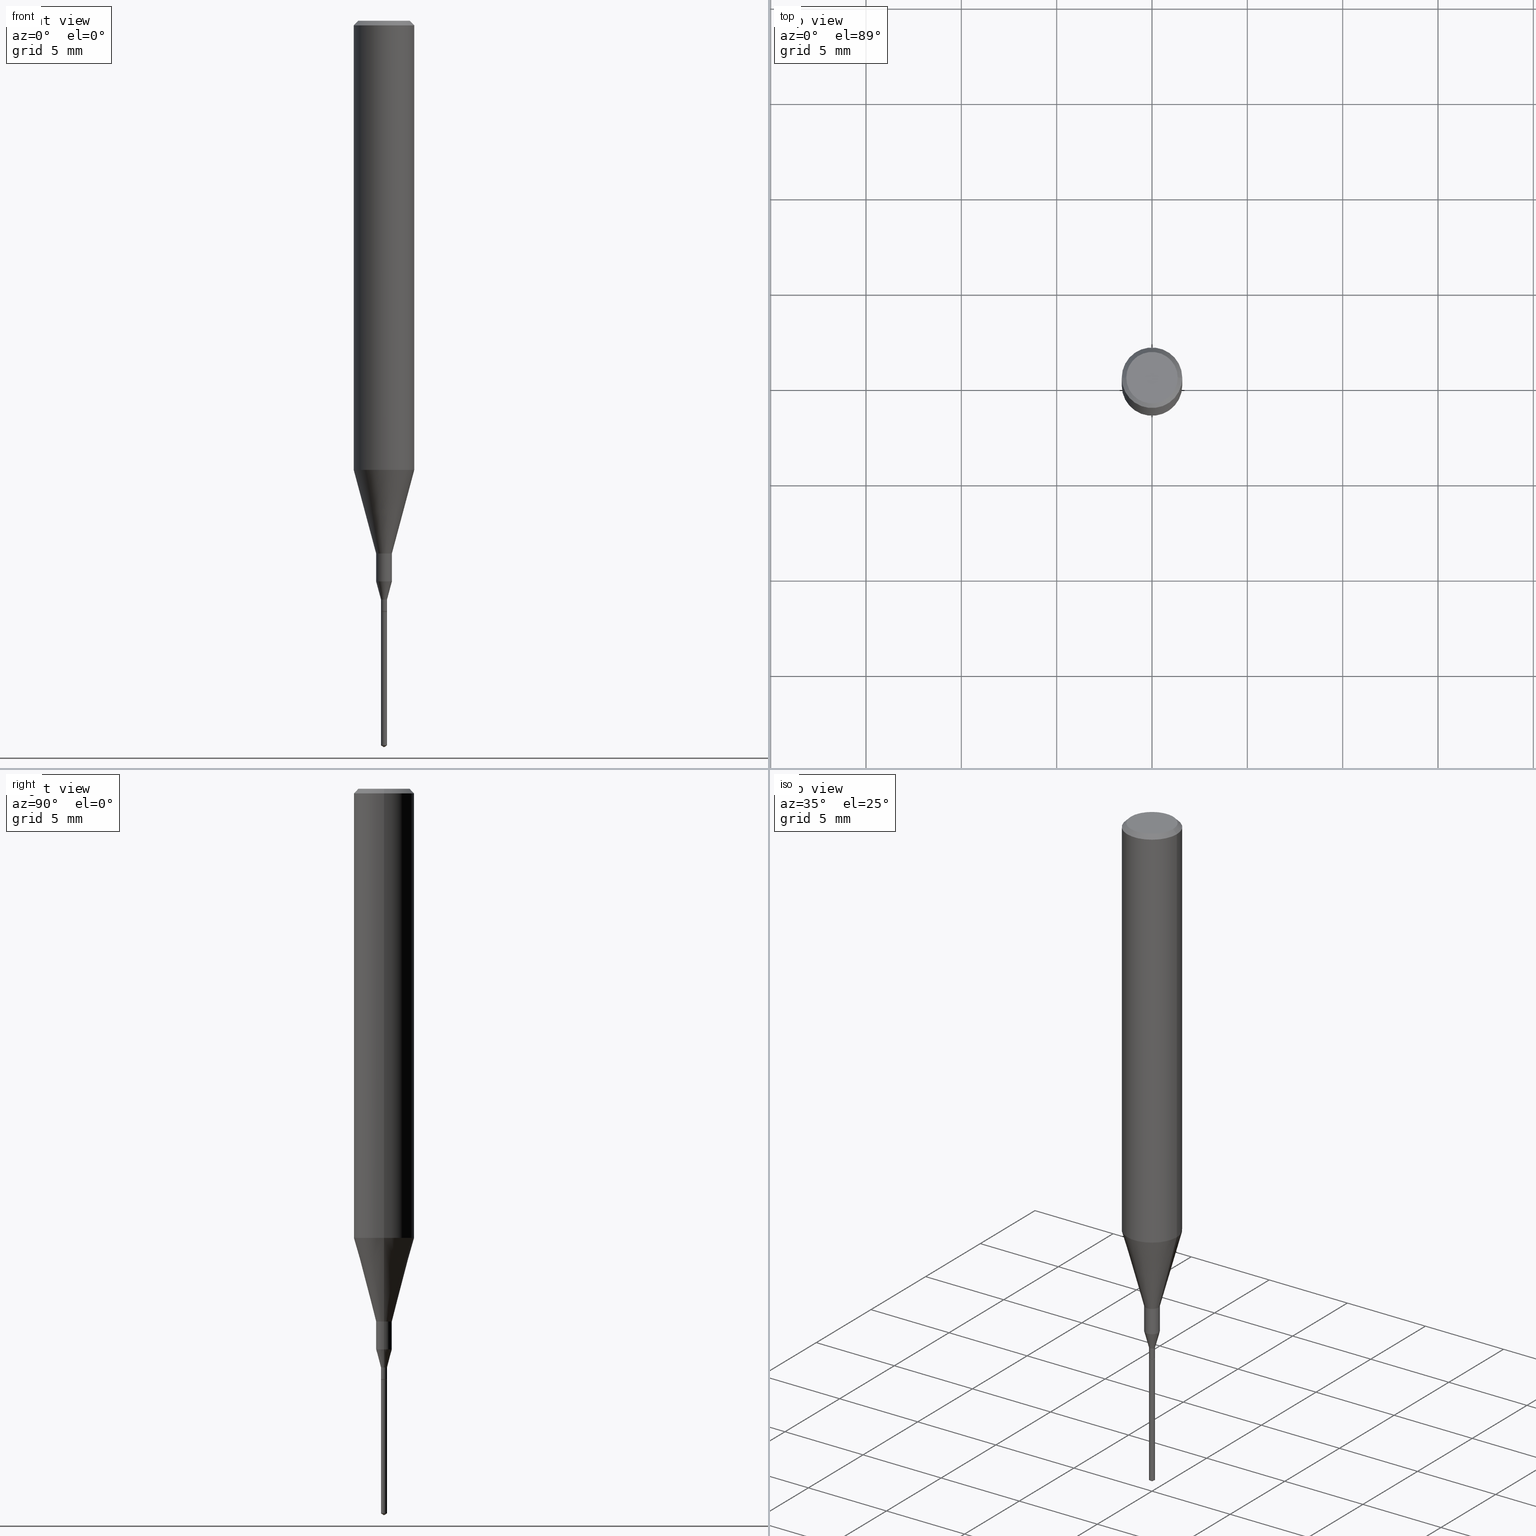
[diagram: canonical four-view strip — front | top / right | iso, engineering-drawing reading convention]
A machine part, canonical four-view strip (front | top / right | iso — engineering-drawing reading convention). The complete STEP part file that produces these views, byte-faithful:
ISO-10303-21;
HEADER;
FILE_DESCRIPTION (( 'STEP AP203' ),
    '1' );
FILE_NAME ('07271.STEP',
    '2024-04-19T13:30:36',
    ( '' ),
    ( '' ),
    'SwSTEP 2.0',
    'SolidWorks 2023',
    '' );
FILE_SCHEMA (( 'CONFIG_CONTROL_DESIGN' ));
ENDSEC;

DATA;
#1 = CC_DESIGN_DATE_AND_TIME_ASSIGNMENT ( #466, #109, ( #346 ) ) ;
#2 = ORIENTED_EDGE ( 'NONE', *, *, #58, .T. ) ;
#3 = ORIENTED_EDGE ( 'NONE', *, *, #361, .F. ) ;
#4 = FACE_OUTER_BOUND ( 'NONE', #354, .T. ) ;
#5 = EDGE_CURVE ( 'NONE', #34, #244, #235, .T. ) ;
#6 = FACE_OUTER_BOUND ( 'NONE', #415, .T. ) ;
#7 = COORDINATED_UNIVERSAL_TIME_OFFSET ( 5, 0, .BEHIND. ) ;
#8 = AXIS2_PLACEMENT_3D ( 'NONE', #75, #536, #127 ) ;
#9 = PERSON_AND_ORGANIZATION ( #229, #590 ) ;
#10 = PLANE ( 'NONE',  #580 ) ;
#11 = PERSON_AND_ORGANIZATION_ROLE ( 'design_owner' ) ;
#12 = VERTEX_POINT ( 'NONE', #556 ) ;
#13 = ORIENTED_EDGE ( 'NONE', *, *, #465, .T. ) ;
#14 = CARTESIAN_POINT ( 'NONE',  ( 0.000000000000000000, 0.000000000000000000, 0.000000000000000000 ) ) ;
#15 = CARTESIAN_POINT ( 'NONE',  ( 3.671756622784818160E-29, -5.232204881897092157E-15, -1.500000000000000222 ) ) ;
#16 = DIRECTION ( 'NONE',  ( 1.000000000000000000, -6.982962677686265922E-15, 0.000000000000000000 ) ) ;
#17 = CLOSED_SHELL ( 'NONE', ( #448, #422, #532, #215, #488, #35, #222, #333, #42, #255, #358, #113, #418, #259, #537, #106 ) ) ;
#18 = AXIS2_PLACEMENT_3D ( 'NONE', #14, #53, #115 ) ;
#19 = DIRECTION ( 'NONE',  ( -2.445468806185136877E-29, 3.491481338843145188E-15, 1.000000000000000000 ) ) ;
#20 = DIRECTION ( 'NONE',  ( 1.000000000000000000, -6.982962677686301420E-15, 0.000000000000000000 ) ) ;
#21 = CARTESIAN_POINT ( 'NONE',  ( 1.415359278996747967E-46, -2.020757941330909984E-32, -5.787680772770392401E-18 ) ) ;
#22 = PRODUCT_RELATED_PRODUCT_CATEGORY ( 'detail', '', ( #343 ) ) ;
#23 = CARTESIAN_POINT ( 'NONE',  ( -0.06250000000000005551, 4.440892098500630106E-16, -3.074334431409318916E-30 ) ) ;
#24 = AXIS2_PLACEMENT_3D ( 'NONE', #155, #571, #349 ) ;
#25 = MANIFOLD_SOLID_BREP ( 'Body-Move/Copy2[1]', #471 ) ;
#26 = ORIENTED_EDGE ( 'NONE', *, *, #547, .F. ) ;
#27 = APPLICATION_CONTEXT ( 'configuration controlled 3d designs of mechanical parts and assemblies' ) ;
#28 = DIRECTION ( 'NONE',  ( 1.000000000000000000, -6.982962677686258033E-15, 0.000000000000000000 ) ) ;
#29 = ORIENTED_EDGE ( 'NONE', *, *, #117, .T. ) ;
#30 = DIRECTION ( 'NONE',  ( -2.445468806185136597E-29, 3.491481338843145583E-15, 1.000000000000000000 ) ) ;
#31 = EDGE_LOOP ( 'NONE', ( #577, #303, #43, #370 ) ) ;
#32 = VECTOR ( 'NONE', #219, 39.37007874015748143 ) ;
#33 = CONICAL_SURFACE ( 'NONE', #581, 0.06250000000000000000, 0.7853981633974453924 ) ;
#34 = VERTEX_POINT ( 'NONE', #144 ) ;
#35 = ADVANCED_FACE ( 'NONE', ( #330 ), #280, .T. ) ;
#36 = EDGE_LOOP ( 'NONE', ( #171, #543, #162, #57 ) ) ;
#37 = DIRECTION ( 'NONE',  ( 1.000000000000000000, -6.982962677686266711E-15, 0.000000000000000000 ) ) ;
#38 = CARTESIAN_POINT ( 'NONE',  ( 0.06250000000000005551, -4.364351673553920638E-16, 3.047610484872462323E-30 ) ) ;
#39 = ORIENTED_EDGE ( 'NONE', *, *, #193, .F. ) ;
#40 = AXIS2_PLACEMENT_3D ( 'NONE', #311, #87, #583 ) ;
#41 = CONICAL_SURFACE ( 'NONE', #356, 0.01625000000000000056, 0.2617993877991484086 ) ;
#42 = ADVANCED_FACE ( 'NONE', ( #385 ), #70, .T. ) ;
#43 = ORIENTED_EDGE ( 'NONE', *, *, #5, .T. ) ;
#44 = DIRECTION ( 'NONE',  ( -2.445468806185136597E-29, 3.491481338843145583E-15, 1.000000000000000000 ) ) ;
#45 = CARTESIAN_POINT ( 'NONE',  ( 4.440892098504290297E-17, 0.006249999999995740733, -1.220000000000000195 ) ) ;
#46 = DIRECTION ( 'NONE',  ( -0.7071067811865173747, 7.493145998870245297E-15, 0.7071067811865776598 ) ) ;
#47 = VERTEX_POINT ( 'NONE', #108 ) ;
#48 = APPROVAL_STATUS ( 'not_yet_approved' ) ;
#49 = CIRCLE ( 'NONE', #304, 0.01625000000000000056 ) ;
#50 = FACE_OUTER_BOUND ( 'NONE', #36, .T. ) ;
#51 = ORIENTED_EDGE ( 'NONE', *, *, #174, .T. ) ;
#52 = FACE_OUTER_BOUND ( 'NONE', #263, .T. ) ;
#53 = DIRECTION ( 'NONE',  ( 0.000000000000000000, 0.000000000000000000, 1.000000000000000000 ) ) ;
#54 = EDGE_CURVE ( 'NONE', #244, #357, #245, .T. ) ;
#55 = DIRECTION ( 'NONE',  ( 1.000000000000000000, -6.982962677686266711E-15, 4.876176775795935232E-29 ) ) ;
#56 = LINE ( 'NONE', #509, #179 ) ;
#57 = ORIENTED_EDGE ( 'NONE', *, *, #391, .F. ) ;
#58 = EDGE_CURVE ( 'NONE', #168, #90, #123, .T. ) ;
#59 = DIRECTION ( 'NONE',  ( 0.2588190451025214611, 1.565188264969620982E-15, 0.9659258262890679791 ) ) ;
#60 = ORIENTED_EDGE ( 'NONE', *, *, #478, .T. ) ;
#61 = DIRECTION ( 'NONE',  ( -2.445468806185136597E-29, 3.491481338843145583E-15, 1.000000000000000000 ) ) ;
#62 = CALENDAR_DATE ( 2024, 19, 4 ) ;
#63 = CARTESIAN_POINT ( 'NONE',  ( 2.983471943545866670E-29, -4.259607233388637524E-15, -1.220000000000000195 ) ) ;
#64 = CONICAL_SURFACE ( 'NONE', #248, 0.005749999999999999903, 0.7853981633974056464 ) ;
#65 = EDGE_CURVE ( 'NONE', #12, #436, #224, .T. ) ;
#66 =( NAMED_UNIT ( * ) PLANE_ANGLE_UNIT ( ) SI_UNIT ( $, .RADIAN. ) );
#67 = CARTESIAN_POINT ( 'NONE',  ( -0.06250000000000000000, -1.191264174815165938E-15, -0.009375000000000063838 ) ) ;
#68 = CARTESIAN_POINT ( 'NONE',  ( 2.982249209142773869E-29, -4.257861492719216809E-15, -1.219500000000000028 ) ) ;
#69 = CC_DESIGN_PERSON_AND_ORGANIZATION_ASSIGNMENT ( #435, #441, ( #226 ) ) ;
#70 = CONICAL_SURFACE ( 'NONE', #518, 0.005749999999999999903, 0.7853981633974056464 ) ;
#71 = LOCAL_TIME ( 9, 30, 36.00000000000000000, #468 ) ;
#72 = VERTEX_POINT ( 'NONE', #228 ) ;
#73 = CALENDAR_DATE ( 2024, 19, 4 ) ;
#74 = VERTEX_POINT ( 'NONE', #282 ) ;
#75 = CARTESIAN_POINT ( 'NONE',  ( 2.983471943545866670E-29, -4.259607233388637524E-15, -1.220000000000000195 ) ) ;
#76 = CARTESIAN_POINT ( 'NONE',  ( 3.666007719824111950E-29, -5.240366074121763826E-15, -1.500000000000000222 ) ) ;
#77 = ORIENTED_EDGE ( 'NONE', *, *, #189, .F. ) ;
#78 = CARTESIAN_POINT ( 'NONE',  ( -0.006250000000000035909, -4.170681925333381107E-15, -1.195000000000000284 ) ) ;
#79 = EDGE_CURVE ( 'NONE', #445, #312, #242, .T. ) ;
#80 = CONICAL_SURFACE ( 'NONE', #412, 65.52281426576342938, 1.029744258676620783 ) ;
#81 = CARTESIAN_POINT ( 'NONE',  ( -0.005749999999999999903, -4.218751026082432319E-15, -1.220000000000000195 ) ) ;
#82 = ORIENTED_EDGE ( 'NONE', *, *, #547, .T. ) ;
#83 = VECTOR ( 'NONE', #321, 39.37007874015748143 ) ;
#84 = DIRECTION ( 'NONE',  ( -2.445468806185136597E-29, 3.491481338843145583E-15, 1.000000000000000000 ) ) ;
#85 = DIRECTION ( 'NONE',  ( 1.000000000000000000, -6.982962677686254089E-15, 0.000000000000000000 ) ) ;
#86 = ORIENTED_EDGE ( 'NONE', *, *, #502, .T. ) ;
#87 = DIRECTION ( 'NONE',  ( -2.445468806185136597E-29, 3.491481338843145583E-15, 1.000000000000000000 ) ) ;
#88 = APPROVAL ( #516, 'UNSPECIFIED' ) ;
#89 = CARTESIAN_POINT ( 'NONE',  ( -0.01624999999999999709, -3.825859713010287951E-15, -1.100000000000000089 ) ) ;
#90 = VERTEX_POINT ( 'NONE', #232 ) ;
#91 = CARTESIAN_POINT ( 'NONE',  ( 2.983471943545866670E-29, -4.259607233388637524E-15, -1.220000000000000195 ) ) ;
#92 = VECTOR ( 'NONE', #210, 39.37007874015748143 ) ;
#93 = CC_DESIGN_APPROVAL ( #431, ( #346 ) ) ;
#94 = CC_DESIGN_PERSON_AND_ORGANIZATION_ASSIGNMENT ( #331, #105, ( #346 ) ) ;
#95 = CARTESIAN_POINT ( 'NONE',  ( 0.01625000000000000056, -4.155489485927549059E-15, -1.157679491924311410 ) ) ;
#96 = ORIENTED_EDGE ( 'NONE', *, *, #452, .F. ) ;
#97 = DIRECTION ( 'NONE',  ( -2.447804433263427602E-29, 3.488136587931395429E-15, 1.000000000000000000 ) ) ;
#98 = DATE_AND_TIME ( #62, #71 ) ;
#99 = DIRECTION ( 'NONE',  ( 1.000000000000000000, -6.982962677686265922E-15, 0.000000000000000000 ) ) ;
#100 = CARTESIAN_POINT ( 'NONE',  ( 0.005749999999999999903, -4.299759268785333684E-15, -1.220000000000000195 ) ) ;
#101 = CARTESIAN_POINT ( 'NONE',  ( 2.983471943545866670E-29, -4.259607233388637524E-15, -1.220000000000000195 ) ) ;
#102 = CIRCLE ( 'NONE', #561, 0.006249999999999999480 ) ;
#103 = VECTOR ( 'NONE', #379, 39.37007874015748143 ) ;
#104 = CARTESIAN_POINT ( 'NONE',  ( 0.000000000000000000, 0.000000000000000000, 0.000000000000000000 ) ) ;
#105 = PERSON_AND_ORGANIZATION_ROLE ( 'creator' ) ;
#106 = ADVANCED_FACE ( 'NONE', ( #410 ), #10, .F. ) ;
#107 = DIRECTION ( 'NONE',  ( -2.447804433263427602E-29, 3.488136587931395429E-15, 1.000000000000000000 ) ) ;
#108 = CARTESIAN_POINT ( 'NONE',  ( -0.05312499999999999861, 3.873362110279099094E-16, -5.787680772773044021E-18 ) ) ;
#109 = DATE_TIME_ROLE ( 'creation_date' ) ;
#110 = EDGE_CURVE ( 'NONE', #34, #168, #386, .T. ) ;
#111 = DIRECTION ( 'NONE',  ( 1.000000000000000000, -6.982962677686266711E-15, 4.876176775795935232E-29 ) ) ;
#112 = EDGE_CURVE ( 'NONE', #359, #164, #574, .T. ) ;
#113 = ADVANCED_FACE ( 'NONE', ( #347 ), #477, .T. ) ;
#114 = ORIENTED_EDGE ( 'NONE', *, *, #117, .F. ) ;
#115 = DIRECTION ( 'NONE',  ( 1.000000000000000000, 0.000000000000000000, 0.000000000000000000 ) ) ;
#116 = AXIS2_PLACEMENT_3D ( 'NONE', #494, #172, #360 ) ;
#117 = EDGE_CURVE ( 'NONE', #72, #445, #148, .T. ) ;
#118 = PLANE ( 'NONE',  #395 ) ;
#119 = COORDINATED_UNIVERSAL_TIME_OFFSET ( 5, 0, .BEHIND. ) ;
#120 = ORIENTED_EDGE ( 'NONE', *, *, #231, .T. ) ;
#121 = AXIS2_PLACEMENT_3D ( 'NONE', #535, #134, #221 ) ;
#122 = DIRECTION ( 'NONE',  ( 1.000000000000000000, -6.982962677686258033E-15, 0.000000000000000000 ) ) ;
#123 = LINE ( 'NONE', #81, #572 ) ;
#124 = ORIENTED_EDGE ( 'NONE', *, *, #391, .T. ) ;
#125 = CC_DESIGN_PERSON_AND_ORGANIZATION_ASSIGNMENT ( #9, #191, ( #429 ) ) ;
#126 = CARTESIAN_POINT ( 'NONE',  ( 2.690015686803650369E-29, -3.840629472727460101E-15, -1.100000000000000089 ) ) ;
#127 = DIRECTION ( 'NONE',  ( -6.982962677686265133E-15, -1.000000000000000000, 0.000000000000000000 ) ) ;
#128 = APPROVAL_ROLE ( '' ) ;
#129 = EDGE_LOOP ( 'NONE', ( #568, #13 ) ) ;
#130 = EDGE_CURVE ( 'NONE', #74, #278, #427, .T. ) ;
#131 = CARTESIAN_POINT ( 'NONE',  ( -0.01625000000000000056, -3.926553147854131198E-15, -1.157679491924311410 ) ) ;
#132 = EDGE_CURVE ( 'NONE', #312, #359, #491, .T. ) ;
#133 = ORIENTED_EDGE ( 'NONE', *, *, #548, .T. ) ;
#134 = DIRECTION ( 'NONE',  ( -2.445468806185136597E-29, 3.491481338843145583E-15, 1.000000000000000000 ) ) ;
#135 = ADVANCED_FACE ( 'NONE', ( #588 ), #313, .F. ) ;
#136 = VECTOR ( 'NONE', #140, 39.37007874015748143 ) ;
#137 = ORIENTED_EDGE ( 'NONE', *, *, #262, .F. ) ;
#138 = CIRCLE ( 'NONE', #460, 0.006249999999999993408 ) ;
#139 = LINE ( 'NONE', #38, #83 ) ;
#140 = DIRECTION ( 'NONE',  ( -2.445468806185136877E-29, 3.491481338843145188E-15, 1.000000000000000000 ) ) ;
#141 = AXIS2_PLACEMENT_3D ( 'NONE', #514, #570, #16 ) ;
#142 = CIRCLE ( 'NONE', #324, 0.06250000000000011102 ) ;
#143 = LINE ( 'NONE', #276, #482 ) ;
#144 = CARTESIAN_POINT ( 'NONE',  ( 0.005749999999999999903, -4.299759268785333684E-15, -1.220000000000000195 ) ) ;
#145 = PERSON_AND_ORGANIZATION ( #229, #590 ) ;
#146 = CC_DESIGN_DATE_AND_TIME_ASSIGNMENT ( #250, #526, ( #226 ) ) ;
#147 = DIRECTION ( 'NONE',  ( 2.438088387897960049E-29, -3.491481338843145188E-15, -1.000000000000000000 ) ) ;
#148 = CIRCLE ( 'NONE', #121, 0.01625000000000000056 ) ;
#149 = AXIS2_PLACEMENT_3D ( 'NONE', #328, #498, #184 ) ;
#150 = LOCAL_TIME ( 9, 30, 36.00000000000000000, #119 ) ;
#151 = DIRECTION ( 'NONE',  ( -2.447804433263427602E-29, 3.488136587931395429E-15, 1.000000000000000000 ) ) ;
#152 = CARTESIAN_POINT ( 'NONE',  ( 2.983471943545866670E-29, -4.259607233388637524E-15, -1.220000000000000195 ) ) ;
#153 = ORIENTED_EDGE ( 'NONE', *, *, #326, .F. ) ;
#154 = DIRECTION ( 'NONE',  ( -2.445468806185136597E-29, 3.491481338843145583E-15, 1.000000000000000000 ) ) ;
#155 = CARTESIAN_POINT ( 'NONE',  ( 2.267909797027042920E-29, -3.237974131778804114E-15, -0.9273926501499395458 ) ) ;
#156 = AXIS2_PLACEMENT_3D ( 'NONE', #440, #523, #298 ) ;
#157 = FACE_OUTER_BOUND ( 'NONE', #485, .T. ) ;
#158 = CIRCLE ( 'NONE', #497, 0.006250000000000000347 ) ;
#159 = LOCAL_TIME ( 9, 30, 36.00000000000000000, #348 ) ;
#160 = DIRECTION ( 'NONE',  ( -2.445468806185136597E-29, 3.491481338843145583E-15, 1.000000000000000000 ) ) ;
#161 = DIRECTION ( 'NONE',  ( 1.000000000000000000, -6.982962677686266711E-15, 4.875930095424100059E-29 ) ) ;
#162 = ORIENTED_EDGE ( 'NONE', *, *, #130, .F. ) ;
#163 = DIRECTION ( 'NONE',  ( 2.445468806185136597E-29, -3.491481338843145583E-15, -1.000000000000000000 ) ) ;
#164 = VERTEX_POINT ( 'NONE', #490 ) ;
#165 = CARTESIAN_POINT ( 'NONE',  ( -4.364351673550256503E-17, -0.006250000000005222732, -1.496244621131077590 ) ) ;
#166 = AXIS2_PLACEMENT_3D ( 'NONE', #542, #316, #85 ) ;
#167 = CONICAL_SURFACE ( 'NONE', #295, 0.06250000000000011102, 0.2617993877991501850 ) ;
#168 = VERTEX_POINT ( 'NONE', #405 ) ;
#169 = ADVANCED_FACE ( 'NONE', ( #180 ), #368, .T. ) ;
#170 = DIRECTION ( 'NONE',  ( 1.000000000000000000, -6.982962677686259611E-15, 0.000000000000000000 ) ) ;
#171 = ORIENTED_EDGE ( 'NONE', *, *, #270, .T. ) ;
#172 = DIRECTION ( 'NONE',  ( 2.447804433263427042E-29, -3.488136587931395429E-15, -1.000000000000000000 ) ) ;
#173 = DIRECTION ( 'NONE',  ( -2.445468806185136597E-29, 3.491481338843145583E-15, 1.000000000000000000 ) ) ;
#174 = EDGE_CURVE ( 'NONE', #557, #469, #102, .T. ) ;
#175 = CARTESIAN_POINT ( 'NONE',  ( 0.006249999999999993408, -4.301505009454755187E-15, -1.219500000000000028 ) ) ;
#176 = ORIENTED_EDGE ( 'NONE', *, *, #463, .F. ) ;
#177 = DIRECTION ( 'NONE',  ( -2.447804433263427602E-29, 3.488136587931395429E-15, 1.000000000000000000 ) ) ;
#178 = AXIS2_PLACEMENT_3D ( 'NONE', #455, #44, #230 ) ;
#179 = VECTOR ( 'NONE', #462, 39.37007874015748143 ) ;
#180 = FACE_OUTER_BOUND ( 'NONE', #446, .T. ) ;
#181 = ORIENTED_EDGE ( 'NONE', *, *, #54, .F. ) ;
#182 = DIRECTION ( 'NONE',  ( 6.090539988449656162E-15, 0.8571673007020966795, 0.5150380749100800237 ) ) ;
#183 = FACE_OUTER_BOUND ( 'NONE', #404, .T. ) ;
#184 = DIRECTION ( 'NONE',  ( -1.000000000000000000, 6.982962677686266711E-15, 0.000000000000000000 ) ) ;
#185 = ORIENTED_EDGE ( 'NONE', *, *, #277, .T. ) ;
#186 = AXIS2_PLACEMENT_3D ( 'NONE', #227, #275, #243 ) ;
#187 = CALENDAR_DATE ( 2024, 19, 4 ) ;
#188 = LOCAL_TIME ( 9, 30, 36.00000000000000000, #7 ) ;
#189 = EDGE_CURVE ( 'NONE', #445, #72, #49, .T. ) ;
#190 = ORIENTED_EDGE ( 'NONE', *, *, #340, .T. ) ;
#191 = PERSON_AND_ORGANIZATION_ROLE ( 'design_supplier' ) ;
#192 = DIMENSIONAL_EXPONENTS ( 1.000000000000000000, 0.000000000000000000, 0.000000000000000000, 0.000000000000000000, 0.000000000000000000, 0.000000000000000000, 0.000000000000000000 ) ;
#193 = EDGE_CURVE ( 'NONE', #278, #74, #459, .T. ) ;
#194 = UNCERTAINTY_MEASURE_WITH_UNIT (LENGTH_MEASURE( 1.000000000000000082E-05 ), #423, 'distance_accuracy_value', 'NONE');
#195 = APPLICATION_PROTOCOL_DEFINITION ( 'international standard', 'config_control_design', 1994, #27 ) ;
#196 = DIRECTION ( 'NONE',  ( 1.000000000000000000, -6.982962677686258033E-15, 0.000000000000000000 ) ) ;
#197 = DIRECTION ( 'NONE',  ( -2.445468806185136877E-29, 3.491481338843145188E-15, 1.000000000000000000 ) ) ;
#198 = EDGE_CURVE ( 'NONE', #469, #557, #481, .T. ) ;
#199 = DIRECTION ( 'NONE',  ( -2.445468806185136597E-29, 3.491481338843145583E-15, 1.000000000000000000 ) ) ;
#200 = CARTESIAN_POINT ( 'NONE',  ( 0.06250000000000000000, -4.615137624123753937E-16, -0.009375000000000063838 ) ) ;
#201 = ORIENTED_EDGE ( 'NONE', *, *, #231, .F. ) ;
#202 = VECTOR ( 'NONE', #241, 39.37007874015748143 ) ;
#203 = VECTOR ( 'NONE', #458, 39.37007874015748143 ) ;
#204 = LINE ( 'NONE', #352, #92 ) ;
#205 = CC_DESIGN_PERSON_AND_ORGANIZATION_ASSIGNMENT ( #145, #11, ( #343 ) ) ;
#206 = DIRECTION ( 'NONE',  ( -2.445468806185136597E-29, 3.491481338843145583E-15, 1.000000000000000000 ) ) ;
#207 = VERTEX_POINT ( 'NONE', #501 ) ;
#208 = FACE_OUTER_BOUND ( 'NONE', #261, .T. ) ;
#209 = EDGE_LOOP ( 'NONE', ( #399, #82 ) ) ;
#210 = DIRECTION ( 'NONE',  ( -2.445468806185136877E-29, 3.491481338843145188E-15, 1.000000000000000000 ) ) ;
#211 = CIRCLE ( 'NONE', #589, 0.006250000000000035909 ) ;
#212 = LOCAL_TIME ( 9, 30, 36.00000000000000000, #384 ) ;
#213 = ORIENTED_EDGE ( 'NONE', *, *, #110, .F. ) ;
#214 = DIRECTION ( 'NONE',  ( 1.000000000000000000, -6.982962677686267499E-15, 4.876176775795936353E-29 ) ) ;
#215 = ADVANCED_FACE ( 'NONE', ( #559 ), #409, .T. ) ;
#216 = CARTESIAN_POINT ( 'NONE',  ( -0.01624999999999999709, 1.154631945610162595E-16, -7.993269521664220284E-31 ) ) ;
#217 = LINE ( 'NONE', #23, #388 ) ;
#218 = ORIENTED_EDGE ( 'NONE', *, *, #112, .T. ) ;
#219 = DIRECTION ( 'NONE',  ( 0.2588190451025196848, 1.565188264969635181E-15, 0.9659258262890685343 ) ) ;
#220 = VERTEX_POINT ( 'NONE', #560 ) ;
#221 = DIRECTION ( 'NONE',  ( 1.000000000000000000, -6.982962677686258033E-15, 0.000000000000000000 ) ) ;
#222 = ADVANCED_FACE ( 'NONE', ( #424 ), #64, .T. ) ;
#223 = MANIFOLD_SOLID_BREP ( 'Body-Move/Copy2[2]', #17 ) ;
#224 = CIRCLE ( 'NONE', #344, 0.006250000000000000347 ) ;
#225 = VECTOR ( 'NONE', #97, 39.37007874015748143 ) ;
#226 = SECURITY_CLASSIFICATION ( '', '', #524 ) ;
#227 = CARTESIAN_POINT ( 'NONE',  ( 3.659664751815693885E-29, -5.223186203575195199E-15, -1.496244621131077590 ) ) ;
#228 = CARTESIAN_POINT ( 'NONE',  ( -0.01625000000000000056, -3.926553147854131198E-15, -1.157679491924311410 ) ) ;
#229 = PERSON ( 'UNSPECIFIED', 'UNSPECIFIED', 'UNSPECIFIED', ('UNSPECIFIED'), ('UNSPECIFIED'), ('UNSPECIFIED') ) ;
#230 = DIRECTION ( 'NONE',  ( 1.000000000000000000, -6.982962677686267499E-15, 4.876176775795935793E-29 ) ) ;
#231 = EDGE_CURVE ( 'NONE', #90, #236, #204, .T. ) ;
#232 = CARTESIAN_POINT ( 'NONE',  ( -0.006249999999999993408, -4.213452571734209917E-15, -1.219500000000000028 ) ) ;
#233 = FACE_OUTER_BOUND ( 'NONE', #573, .T. ) ;
#234 = DIRECTION ( 'NONE',  ( -2.447804433263427602E-29, 3.488136587931395429E-15, 1.000000000000000000 ) ) ;
#235 = LINE ( 'NONE', #100, #202 ) ;
#236 = VERTEX_POINT ( 'NONE', #78 ) ;
#237 = AXIS2_PLACEMENT_3D ( 'NONE', #376, #551, #507 ) ;
#238 = PERSON_AND_ORGANIZATION ( #229, #590 ) ;
#239 = AXIS2_PLACEMENT_3D ( 'NONE', #555, #369, #408 ) ;
#240 = LINE ( 'NONE', #292, #400 ) ;
#241 = DIRECTION ( 'NONE',  ( 0.7071067811865173747, -2.468850131081940727E-15, 0.7071067811865776598 ) ) ;
#242 = LINE ( 'NONE', #553, #136 ) ;
#243 = DIRECTION ( 'NONE',  ( -6.982962677686265133E-15, -1.000000000000000000, 0.000000000000000000 ) ) ;
#244 = VERTEX_POINT ( 'NONE', #175 ) ;
#245 = LINE ( 'NONE', #426, #364 ) ;
#246 = APPROVAL_DATE_TIME ( #98, #88 ) ;
#247 = APPLICATION_CONTEXT ( 'configuration controlled 3d designs of mechanical parts and assemblies' ) ;
#248 = AXIS2_PLACEMENT_3D ( 'NONE', #63, #199, #479 ) ;
#249 = VECTOR ( 'NONE', #182, 39.37007874015748854 ) ;
#250 = DATE_AND_TIME ( #73, #159 ) ;
#251 = CARTESIAN_POINT ( 'NONE',  ( 2.292627005798581061E-31, -3.273263755165471417E-17, -0.009375000000000063838 ) ) ;
#252 = ORIENTED_EDGE ( 'NONE', *, *, #366, .F. ) ;
#253 = EDGE_CURVE ( 'NONE', #357, #236, #438, .T. ) ;
#254 = PRODUCT_DEFINITION_SHAPE ( 'NONE', 'NONE',  #346 ) ;
#255 = ADVANCED_FACE ( 'NONE', ( #233 ), #529, .T. ) ;
#256 = CIRCLE ( 'NONE', #141, 0.06250000000000011102 ) ;
#257 = ORIENTED_EDGE ( 'NONE', *, *, #502, .F. ) ;
#258 = FACE_OUTER_BOUND ( 'NONE', #476, .T. ) ;
#259 = ADVANCED_FACE ( 'NONE', ( #183 ), #325, .T. ) ;
#260 = CARTESIAN_POINT ( 'NONE',  ( 2.831069085061161203E-29, -4.042016342415147383E-15, -1.157679491924311410 ) ) ;
#261 = EDGE_LOOP ( 'NONE', ( #213, #3 ) ) ;
#262 = EDGE_CURVE ( 'NONE', #312, #362, #240, .T. ) ;
#263 = EDGE_LOOP ( 'NONE', ( #442, #372, #351, #398 ) ) ;
#264 = CARTESIAN_POINT ( 'NONE',  ( 0.000000000000000000, 0.000000000000000000, 0.000000000000000000 ) ) ;
#265 = AXIS2_PLACEMENT_3D ( 'NONE', #425, #467, #111 ) ;
#266 = AXIS2_PLACEMENT_3D ( 'NONE', #101, #453, #464 ) ;
#267 = ORIENTED_EDGE ( 'NONE', *, *, #110, .T. ) ;
#268 = ORIENTED_EDGE ( 'NONE', *, *, #550, .T. ) ;
#269 = ORIENTED_EDGE ( 'NONE', *, *, #569, .F. ) ;
#270 = EDGE_CURVE ( 'NONE', #362, #164, #256, .T. ) ;
#271 = DIRECTION ( 'NONE',  ( -2.445468806185136597E-29, 3.491481338843145583E-15, 1.000000000000000000 ) ) ;
#272 = AXIS2_PLACEMENT_3D ( 'NONE', #91, #271, #387 ) ;
#273 = APPROVAL_PERSON_ORGANIZATION ( #565, #431, #411 ) ;
#274 = EDGE_CURVE ( 'NONE', #236, #357, #211, .T. ) ;
#275 = DIRECTION ( 'NONE',  ( -2.447804433263427602E-29, 3.488136587931395429E-15, 1.000000000000000000 ) ) ;
#276 = CARTESIAN_POINT ( 'NONE',  ( -4.364351673550931965E-17, -0.006250000000004259093, -1.220000000000000195 ) ) ;
#277 = EDGE_CURVE ( 'NONE', #220, #74, #341, .T. ) ;
#278 = VERTEX_POINT ( 'NONE', #67 ) ;
#279 = DIRECTION ( 'NONE',  ( 1.000000000000000000, -6.982962677686301420E-15, 0.000000000000000000 ) ) ;
#280 = CYLINDRICAL_SURFACE ( 'NONE', #281, 0.006250000000000014225 ) ;
#281 = AXIS2_PLACEMENT_3D ( 'NONE', #104, #61, #420 ) ;
#282 = CARTESIAN_POINT ( 'NONE',  ( 0.06250000000000000000, -4.691678049070463404E-16, -0.009375000000000063838 ) ) ;
#283 = DIRECTION ( 'NONE',  ( 1.000000000000000000, -6.982962677686265922E-15, 0.000000000000000000 ) ) ;
#284 = CIRCLE ( 'NONE', #506, 0.006249999999999993408 ) ;
#285 = DIRECTION ( 'NONE',  ( -2.445468806185136597E-29, 3.491481338843145583E-15, 1.000000000000000000 ) ) ;
#286 = CARTESIAN_POINT ( 'NONE',  ( -0.06250000000000011102, -2.793884921928740709E-15, -0.9273926501499395458 ) ) ;
#287 = CARTESIAN_POINT ( 'NONE',  ( 2.982249209142773869E-29, -4.257861492719216809E-15, -1.219500000000000028 ) ) ;
#288 = CARTESIAN_POINT ( 'NONE',  ( 2.831069085061161203E-29, -4.042016342415147383E-15, -1.157679491924311410 ) ) ;
#289 = EDGE_LOOP ( 'NONE', ( #267, #2, #582, #291 ) ) ;
#290 = PERSON_AND_ORGANIZATION ( #229, #590 ) ;
#291 = ORIENTED_EDGE ( 'NONE', *, *, #5, .F. ) ;
#292 = CARTESIAN_POINT ( 'NONE',  ( 0.06250000000000011102, -3.674409299134196572E-15, -0.9273926501499395458 ) ) ;
#293 = ORIENTED_EDGE ( 'NONE', *, *, #274, .F. ) ;
#294 = CIRCLE ( 'NONE', #156, 0.05312499999999999861 ) ;
#295 = AXIS2_PLACEMENT_3D ( 'NONE', #584, #173, #99 ) ;
#296 = DIRECTION ( 'NONE',  ( 0.7071067811865454633, -7.319954787623248157E-15, -0.7071067811865495711 ) ) ;
#297 = ORIENTED_EDGE ( 'NONE', *, *, #174, .F. ) ;
#298 = DIRECTION ( 'NONE',  ( 1.000000000000000000, -6.982962677686266711E-15, 4.875930095424100059E-29 ) ) ;
#299 = DIRECTION ( 'NONE',  ( -2.447804433263427602E-29, 3.488136587931395429E-15, 1.000000000000000000 ) ) ;
#300 = SHAPE_DEFINITION_REPRESENTATION ( #254, #322 ) ;
#301 = CARTESIAN_POINT ( 'NONE',  ( 2.292627005798581061E-31, -3.273263755165471417E-17, -0.009375000000000063838 ) ) ;
#302 = CALENDAR_DATE ( 2024, 19, 4 ) ;
#303 = ORIENTED_EDGE ( 'NONE', *, *, #361, .T. ) ;
#304 = AXIS2_PLACEMENT_3D ( 'NONE', #288, #285, #196 ) ;
#305 = CONICAL_SURFACE ( 'NONE', #414, 0.01625000000000000056, 0.2617993877991484086 ) ;
#306 = CARTESIAN_POINT ( 'NONE',  ( -9.270139609322808128E-28, 1.320919266452738465E-13, 37.87007874015748143 ) ) ;
#307 = ORIENTED_EDGE ( 'NONE', *, *, #65, .F. ) ;
#308 = CYLINDRICAL_SURFACE ( 'NONE', #8, 0.006249999999999999480 ) ;
#309 = DATE_AND_TIME ( #302, #150 ) ;
#310 = EDGE_LOOP ( 'NONE', ( #401, #86, #297 ) ) ;
#311 = CARTESIAN_POINT ( 'NONE',  ( 2.690015686803650369E-29, -3.840629472727460101E-15, -1.100000000000000089 ) ) ;
#312 = VERTEX_POINT ( 'NONE', #432 ) ;
#313 = PLANE ( 'NONE',  #116 ) ;
#314 = VECTOR ( 'NONE', #515, 39.37007874015748143 ) ;
#315 = CARTESIAN_POINT ( 'NONE',  ( 2.831069085061161203E-29, -4.042016342415147383E-15, -1.157679491924311410 ) ) ;
#316 = DIRECTION ( 'NONE',  ( -2.445468806185136597E-29, 3.491481338843145583E-15, 1.000000000000000000 ) ) ;
#317 = ORIENTED_EDGE ( 'NONE', *, *, #366, .T. ) ;
#318 = ORIENTED_EDGE ( 'NONE', *, *, #277, .F. ) ;
#319 = EDGE_LOOP ( 'NONE', ( #575, #461, #579, #114 ) ) ;
#320 = ADVANCED_FACE ( 'NONE', ( #157 ), #80, .T. ) ;
#321 = DIRECTION ( 'NONE',  ( -2.445468806185136877E-29, 3.491481338843145188E-15, 1.000000000000000000 ) ) ;
#322 = ADVANCED_BREP_SHAPE_REPRESENTATION ( '07271', ( #25, #223, #18 ), #365 ) ;
#323 = DIRECTION ( 'NONE',  ( -2.445468806185136597E-29, 3.491481338843145583E-15, 1.000000000000000000 ) ) ;
#324 = AXIS2_PLACEMENT_3D ( 'NONE', #335, #472, #283 ) ;
#325 = CYLINDRICAL_SURFACE ( 'NONE', #265, 0.06250000000000005551 ) ;
#326 = EDGE_CURVE ( 'NONE', #47, #220, #294, .T. ) ;
#327 = EDGE_LOOP ( 'NONE', ( #252, #29, #456, #493 ) ) ;
#328 = CARTESIAN_POINT ( 'NONE',  ( 2.292627005798581061E-31, -3.273263755165471417E-17, -0.009375000000000063838 ) ) ;
#329 = APPLICATION_PROTOCOL_DEFINITION ( 'international standard', 'config_control_design', 1994, #247 ) ;
#330 = FACE_OUTER_BOUND ( 'NONE', #552, .T. ) ;
#331 = PERSON_AND_ORGANIZATION ( #229, #590 ) ;
#332 = CARTESIAN_POINT ( 'NONE',  ( 0.000000000000000000, 0.000000000000000000, 0.000000000000000000 ) ) ;
#333 = ADVANCED_FACE ( 'NONE', ( #208 ), #118, .F. ) ;
#334 = VECTOR ( 'NONE', #296, 39.37007874015748143 ) ;
#335 = CARTESIAN_POINT ( 'NONE',  ( 2.267909797027042920E-29, -3.237974131778804114E-15, -0.9273926501499395458 ) ) ;
#336 = APPROVAL_PERSON_ORGANIZATION ( #290, #88, #500 ) ;
#337 = DIRECTION ( 'NONE',  ( -6.982962677686265133E-15, -1.000000000000000000, 0.000000000000000000 ) ) ;
#338 = DIRECTION ( 'NONE',  ( -2.445468806185136597E-29, 3.491481338843145583E-15, 1.000000000000000000 ) ) ;
#339 = ORIENTED_EDGE ( 'NONE', *, *, #132, .T. ) ;
#340 = EDGE_CURVE ( 'NONE', #90, #244, #138, .T. ) ;
#341 = LINE ( 'NONE', #200, #334 ) ;
#342 = CALENDAR_DATE ( 2024, 19, 4 ) ;
#343 = PRODUCT ( '07271', '07271', '', ( #428 ) ) ;
#344 = AXIS2_PLACEMENT_3D ( 'NONE', #503, #371, #546 ) ;
#345 = CONICAL_SURFACE ( 'NONE', #149, 0.06250000000000000000, 0.7853981633974453924 ) ;
#346 = PRODUCT_DEFINITION ( 'UNKNOWN', '', #429, #525 ) ;
#347 = FACE_OUTER_BOUND ( 'NONE', #327, .T. ) ;
#348 = COORDINATED_UNIVERSAL_TIME_OFFSET ( 5, 0, .BEHIND. ) ;
#349 = DIRECTION ( 'NONE',  ( 1.000000000000000000, -6.982962677686265922E-15, 0.000000000000000000 ) ) ;
#350 = DIRECTION ( 'NONE',  ( -6.982962677686265922E-15, -1.000000000000000000, 3.468864327941858877E-15 ) ) ;
#351 = ORIENTED_EDGE ( 'NONE', *, *, #262, .T. ) ;
#352 = CARTESIAN_POINT ( 'NONE',  ( -0.006250000000000014225, 4.440892098500636269E-17, -3.074334431409323208E-31 ) ) ;
#353 = APPROVAL_STATUS ( 'not_yet_approved' ) ;
#354 = EDGE_LOOP ( 'NONE', ( #522, #60, #77, #176 ) ) ;
#355 = AXIS2_PLACEMENT_3D ( 'NONE', #251, #393, #520 ) ;
#356 = AXIS2_PLACEMENT_3D ( 'NONE', #315, #84, #122 ) ;
#357 = VERTEX_POINT ( 'NONE', #397 ) ;
#358 = ADVANCED_FACE ( 'NONE', ( #576 ), #305, .T. ) ;
#359 = VERTEX_POINT ( 'NONE', #89 ) ;
#360 = DIRECTION ( 'NONE',  ( 6.982962677686265922E-15, 1.000000000000000000, -3.488136587931395429E-15 ) ) ;
#361 = EDGE_CURVE ( 'NONE', #168, #34, #407, .T. ) ;
#362 = VERTEX_POINT ( 'NONE', #540 ) ;
#363 = DIRECTION ( 'NONE',  ( -6.982962677686265133E-15, -1.000000000000000000, 0.000000000000000000 ) ) ;
#364 = VECTOR ( 'NONE', #197, 39.37007874015748143 ) ;
#365 =( GEOMETRIC_REPRESENTATION_CONTEXT ( 3 ) GLOBAL_UNCERTAINTY_ASSIGNED_CONTEXT ( ( #194 ) ) GLOBAL_UNIT_ASSIGNED_CONTEXT ( ( #423, #66, #504 ) ) REPRESENTATION_CONTEXT ( 'NONE', 'WORKASPACE' ) );
#366 = EDGE_CURVE ( 'NONE', #72, #359, #416, .T. ) ;
#367 = CC_DESIGN_APPROVAL ( #373, ( #226 ) ) ;
#368 = CYLINDRICAL_SURFACE ( 'NONE', #447, 0.006249999999999999480 ) ;
#369 = DIRECTION ( 'NONE',  ( -2.447804433263427602E-29, 3.488136587931395429E-15, 1.000000000000000000 ) ) ;
#370 = ORIENTED_EDGE ( 'NONE', *, *, #340, .F. ) ;
#371 = DIRECTION ( 'NONE',  ( -2.447804433263427602E-29, 3.488136587931395429E-15, 1.000000000000000000 ) ) ;
#372 = ORIENTED_EDGE ( 'NONE', *, *, #470, .T. ) ;
#373 = APPROVAL ( #353, 'UNSPECIFIED' ) ;
#374 = FACE_OUTER_BOUND ( 'NONE', #310, .T. ) ;
#375 = AXIS2_PLACEMENT_3D ( 'NONE', #457, #402, #37 ) ;
#376 = CARTESIAN_POINT ( 'NONE',  ( 0.000000000000000000, 0.000000000000000000, 0.000000000000000000 ) ) ;
#377 = CIRCLE ( 'NONE', #544, 0.05312499999999999861 ) ;
#378 =( LENGTH_UNIT ( ) NAMED_UNIT ( * ) SI_UNIT ( $, .METRE. ) );
#379 = DIRECTION ( 'NONE',  ( -0.2588190451025196848, 5.211531920934539209E-15, 0.9659258262890685343 ) ) ;
#380 = EDGE_LOOP ( 'NONE', ( #451, #381, #307, #96 ) ) ;
#381 = ORIENTED_EDGE ( 'NONE', *, *, #394, .T. ) ;
#382 = ORIENTED_EDGE ( 'NONE', *, *, #193, .T. ) ;
#383 = CARTESIAN_POINT ( 'NONE',  ( 7.076796394983739835E-47, -1.010378970665454992E-32, -2.893840386385196200E-18 ) ) ;
#384 = COORDINATED_UNIVERSAL_TIME_OFFSET ( 5, 0, .BEHIND. ) ;
#385 = FACE_OUTER_BOUND ( 'NONE', #31, .T. ) ;
#386 = CIRCLE ( 'NONE', #272, 0.005749999999999999903 ) ;
#387 = DIRECTION ( 'NONE',  ( 1.000000000000000000, -6.982962677686291165E-15, 0.000000000000000000 ) ) ;
#388 = VECTOR ( 'NONE', #19, 39.37007874015748143 ) ;
#389 = CC_DESIGN_APPROVAL ( #88, ( #429 ) ) ;
#390 = CARTESIAN_POINT ( 'NONE',  ( 2.922335223391238928E-29, -4.172320199917559979E-15, -1.195000000000000284 ) ) ;
#391 = EDGE_CURVE ( 'NONE', #362, #74, #139, .T. ) ;
#392 = APPROVAL_DATE_TIME ( #309, #373 ) ;
#393 = DIRECTION ( 'NONE',  ( -2.445468806185136597E-29, 3.491481338843145583E-15, 1.000000000000000000 ) ) ;
#394 = EDGE_CURVE ( 'NONE', #557, #436, #406, .T. ) ;
#395 = AXIS2_PLACEMENT_3D ( 'NONE', #437, #484, #474 ) ;
#396 = CONICAL_SURFACE ( 'NONE', #239, 65.52281426576342938, 1.029744258676620783 ) ;
#397 = CARTESIAN_POINT ( 'NONE',  ( 0.006250000000000035909, -4.215963716653099146E-15, -1.195000000000000284 ) ) ;
#398 = ORIENTED_EDGE ( 'NONE', *, *, #549, .F. ) ;
#399 = ORIENTED_EDGE ( 'NONE', *, *, #326, .T. ) ;
#400 = VECTOR ( 'NONE', #59, 39.37007874015748143 ) ;
#401 = ORIENTED_EDGE ( 'NONE', *, *, #548, .F. ) ;
#402 = DIRECTION ( 'NONE',  ( -2.445468806185136597E-29, 3.491481338843145583E-15, 1.000000000000000000 ) ) ;
#403 = ORIENTED_EDGE ( 'NONE', *, *, #569, .T. ) ;
#404 = EDGE_LOOP ( 'NONE', ( #480, #487, #124, #39 ) ) ;
#405 = CARTESIAN_POINT ( 'NONE',  ( -0.005749999999999999903, -4.216101798908321118E-15, -1.220000000000000195 ) ) ;
#406 = LINE ( 'NONE', #499, #225 ) ;
#407 = CIRCLE ( 'NONE', #266, 0.005749999999999999903 ) ;
#408 = DIRECTION ( 'NONE',  ( -6.982962677686265922E-15, -1.000000000000000000, 3.468864327941858877E-15 ) ) ;
#409 = CYLINDRICAL_SURFACE ( 'NONE', #237, 0.01624999999999999709 ) ;
#410 = FACE_OUTER_BOUND ( 'NONE', #209, .T. ) ;
#411 = APPROVAL_ROLE ( '' ) ;
#412 = AXIS2_PLACEMENT_3D ( 'NONE', #306, #299, #350 ) ;
#413 = ORIENTED_EDGE ( 'NONE', *, *, #394, .F. ) ;
#414 = AXIS2_PLACEMENT_3D ( 'NONE', #260, #444, #28 ) ;
#415 = EDGE_LOOP ( 'NONE', ( #26, #185, #564, #269 ) ) ;
#416 = LINE ( 'NONE', #216, #203 ) ;
#417 = PERSON_AND_ORGANIZATION_ROLE ( 'creator' ) ;
#418 = ADVANCED_FACE ( 'NONE', ( #52 ), #167, .T. ) ;
#419 = CYLINDRICAL_SURFACE ( 'NONE', #473, 0.06250000000000005551 ) ;
#420 = DIRECTION ( 'NONE',  ( 1.000000000000000000, -6.982962677686267499E-15, 4.876176775795935793E-29 ) ) ;
#421 = DIRECTION ( 'NONE',  ( -2.445468806185136597E-29, 3.491481338843145583E-15, 1.000000000000000000 ) ) ;
#422 = ADVANCED_FACE ( 'NONE', ( #50 ), #419, .T. ) ;
#423 =( CONVERSION_BASED_UNIT ( 'INCH', #558 ) LENGTH_UNIT ( ) NAMED_UNIT ( #192 ) );
#424 = FACE_OUTER_BOUND ( 'NONE', #289, .T. ) ;
#425 = CARTESIAN_POINT ( 'NONE',  ( 0.000000000000000000, 0.000000000000000000, 0.000000000000000000 ) ) ;
#426 = CARTESIAN_POINT ( 'NONE',  ( 0.006250000000000014225, -4.364351673553927171E-17, 3.047610484872466877E-31 ) ) ;
#427 = CIRCLE ( 'NONE', #375, 0.06250000000000000000 ) ;
#428 = MECHANICAL_CONTEXT ( 'NONE', #27, 'mechanical' ) ;
#429 = PRODUCT_DEFINITION_FORMATION_WITH_SPECIFIED_SOURCE ( 'ANY', '', #343, .NOT_KNOWN. ) ;
#430 = LINE ( 'NONE', #15, #249 ) ;
#431 = APPROVAL ( #48, 'UNSPECIFIED' ) ;
#432 = CARTESIAN_POINT ( 'NONE',  ( 0.01624999999999999709, -3.954102616239861778E-15, -1.100000000000000089 ) ) ;
#433 = EDGE_LOOP ( 'NONE', ( #339, #218, #534, #137 ) ) ;
#434 = DIRECTION ( 'NONE',  ( -1.000000000000000000, 6.982962677686266711E-15, 0.000000000000000000 ) ) ;
#435 = PERSON_AND_ORGANIZATION ( #229, #590 ) ;
#436 = VERTEX_POINT ( 'NONE', #45 ) ;
#437 = CARTESIAN_POINT ( 'NONE',  ( 2.983471943545866670E-29, -4.259607233388637524E-15, -1.220000000000000195 ) ) ;
#438 = CIRCLE ( 'NONE', #166, 0.006250000000000035909 ) ;
#439 = CIRCLE ( 'NONE', #492, 0.01624999999999999709 ) ;
#440 = CARTESIAN_POINT ( 'NONE',  ( 1.415359278996747967E-46, -2.020757941330909984E-32, -5.787680772770392401E-18 ) ) ;
#441 = PERSON_AND_ORGANIZATION_ROLE ( 'classification_officer' ) ;
#442 = ORIENTED_EDGE ( 'NONE', *, *, #112, .F. ) ;
#443 = CC_DESIGN_PERSON_AND_ORGANIZATION_ASSIGNMENT ( #238, #417, ( #429 ) ) ;
#444 = DIRECTION ( 'NONE',  ( -2.445468806185136597E-29, 3.491481338843145583E-15, 1.000000000000000000 ) ) ;
#445 = VERTEX_POINT ( 'NONE', #95 ) ;
#446 = EDGE_LOOP ( 'NONE', ( #413, #51, #489, #585 ) ) ;
#447 = AXIS2_PLACEMENT_3D ( 'NONE', #495, #107, #563 ) ;
#448 = ADVANCED_FACE ( 'NONE', ( #6 ), #345, .T. ) ;
#449 = CONICAL_SURFACE ( 'NONE', #24, 0.06250000000000011102, 0.2617993877991501850 ) ;
#450 = FACE_OUTER_BOUND ( 'NONE', #380, .T. ) ;
#451 = ORIENTED_EDGE ( 'NONE', *, *, #198, .T. ) ;
#452 = EDGE_CURVE ( 'NONE', #469, #12, #143, .T. ) ;
#453 = DIRECTION ( 'NONE',  ( -2.445468806185136597E-29, 3.491481338843145583E-15, 1.000000000000000000 ) ) ;
#454 = LINE ( 'NONE', #541, #32 ) ;
#455 = CARTESIAN_POINT ( 'NONE',  ( 0.000000000000000000, 0.000000000000000000, 0.000000000000000000 ) ) ;
#456 = ORIENTED_EDGE ( 'NONE', *, *, #79, .T. ) ;
#457 = CARTESIAN_POINT ( 'NONE',  ( 2.292627005798581061E-31, -3.273263755165471417E-17, -0.009375000000000063838 ) ) ;
#458 = DIRECTION ( 'NONE',  ( -2.445468806185136877E-29, 3.491481338843145188E-15, 1.000000000000000000 ) ) ;
#459 = CIRCLE ( 'NONE', #355, 0.06250000000000000000 ) ;
#460 = AXIS2_PLACEMENT_3D ( 'NONE', #68, #206, #20 ) ;
#461 = ORIENTED_EDGE ( 'NONE', *, *, #274, .T. ) ;
#462 = DIRECTION ( 'NONE',  ( -0.7071067811865454633, 2.468850131082235367E-15, -0.7071067811865495711 ) ) ;
#463 = EDGE_CURVE ( 'NONE', #357, #445, #454, .T. ) ;
#464 = DIRECTION ( 'NONE',  ( 1.000000000000000000, -6.982962677686291165E-15, 0.000000000000000000 ) ) ;
#465 = EDGE_CURVE ( 'NONE', #436, #12, #158, .T. ) ;
#466 = DATE_AND_TIME ( #342, #188 ) ;
#467 = DIRECTION ( 'NONE',  ( -2.445468806185136597E-29, 3.491481338843145583E-15, 1.000000000000000000 ) ) ;
#468 = COORDINATED_UNIVERSAL_TIME_OFFSET ( 5, 0, .BEHIND. ) ;
#469 = VERTEX_POINT ( 'NONE', #165 ) ;
#470 = EDGE_CURVE ( 'NONE', #359, #312, #439, .T. ) ;
#471 = CLOSED_SHELL ( 'NONE', ( #521, #320, #486, #169, #135 ) ) ;
#472 = DIRECTION ( 'NONE',  ( -2.445468806185136597E-29, 3.491481338843145583E-15, 1.000000000000000000 ) ) ;
#473 = AXIS2_PLACEMENT_3D ( 'NONE', #332, #505, #55 ) ;
#474 = DIRECTION ( 'NONE',  ( 1.000000000000000000, -6.982962677686265922E-15, 4.876176775795935793E-29 ) ) ;
#475 = PERSON_AND_ORGANIZATION ( #229, #590 ) ;
#476 = EDGE_LOOP ( 'NONE', ( #318, #153, #403, #382 ) ) ;
#477 = CYLINDRICAL_SURFACE ( 'NONE', #531, 0.01624999999999999709 ) ;
#478 = EDGE_CURVE ( 'NONE', #236, #72, #538, .T. ) ;
#479 = DIRECTION ( 'NONE',  ( 1.000000000000000000, -6.982962677686291165E-15, 0.000000000000000000 ) ) ;
#480 = ORIENTED_EDGE ( 'NONE', *, *, #527, .F. ) ;
#481 = CIRCLE ( 'NONE', #186, 0.006249999999999999480 ) ;
#482 = VECTOR ( 'NONE', #234, 39.37007874015748143 ) ;
#483 = LINE ( 'NONE', #76, #562 ) ;
#484 = DIRECTION ( 'NONE',  ( -2.438088387897960049E-29, 3.491481338843145188E-15, 1.000000000000000000 ) ) ;
#485 = EDGE_LOOP ( 'NONE', ( #257, #133, #539 ) ) ;
#486 = ADVANCED_FACE ( 'NONE', ( #374 ), #396, .T. ) ;
#487 = ORIENTED_EDGE ( 'NONE', *, *, #549, .T. ) ;
#488 = ADVANCED_FACE ( 'NONE', ( #4 ), #41, .T. ) ;
#489 = ORIENTED_EDGE ( 'NONE', *, *, #452, .T. ) ;
#490 = CARTESIAN_POINT ( 'NONE',  ( -0.06250000000000011102, -2.793884921928740709E-15, -0.9273926501499395458 ) ) ;
#491 = CIRCLE ( 'NONE', #40, 0.01624999999999999709 ) ;
#492 = AXIS2_PLACEMENT_3D ( 'NONE', #126, #30, #170 ) ;
#493 = ORIENTED_EDGE ( 'NONE', *, *, #470, .F. ) ;
#494 = CARTESIAN_POINT ( 'NONE',  ( 2.983471943545866670E-29, -4.259607233388637524E-15, -1.220000000000000195 ) ) ;
#495 = CARTESIAN_POINT ( 'NONE',  ( 2.983471943545866670E-29, -4.259607233388637524E-15, -1.220000000000000195 ) ) ;
#496 = DIRECTION ( 'NONE',  ( -1.000000000000000000, 6.982962677686265922E-15, -4.876176775795935793E-29 ) ) ;
#497 = AXIS2_PLACEMENT_3D ( 'NONE', #578, #177, #363 ) ;
#498 = DIRECTION ( 'NONE',  ( 2.445468806185136597E-29, -3.491481338843145583E-15, -1.000000000000000000 ) ) ;
#499 = CARTESIAN_POINT ( 'NONE',  ( 4.440892098503608672E-17, 0.006249999999995739866, -1.220000000000000195 ) ) ;
#500 = APPROVAL_ROLE ( '' ) ;
#501 = CARTESIAN_POINT ( 'NONE',  ( 3.671706649895141544E-29, -5.232204881897092946E-15, -1.500000000000000222 ) ) ;
#502 = EDGE_CURVE ( 'NONE', #207, #469, #483, .T. ) ;
#503 = CARTESIAN_POINT ( 'NONE',  ( 2.983471943545866670E-29, -4.259607233388637524E-15, -1.220000000000000195 ) ) ;
#504 =( NAMED_UNIT ( * ) SI_UNIT ( $, .STERADIAN. ) SOLID_ANGLE_UNIT ( ) );
#505 = DIRECTION ( 'NONE',  ( -2.445468806185136597E-29, 3.491481338843145583E-15, 1.000000000000000000 ) ) ;
#506 = AXIS2_PLACEMENT_3D ( 'NONE', #287, #421, #279 ) ;
#507 = DIRECTION ( 'NONE',  ( 1.000000000000000000, -6.982962677686267499E-15, 4.876176775795936353E-29 ) ) ;
#508 = CC_DESIGN_SECURITY_CLASSIFICATION ( #226, ( #429 ) ) ;
#509 = CARTESIAN_POINT ( 'NONE',  ( -0.06250000000000000000, 4.037025298037369984E-16, -0.009375000000000063838 ) ) ;
#510 = ORIENTED_EDGE ( 'NONE', *, *, #189, .T. ) ;
#511 = CARTESIAN_POINT ( 'NONE',  ( 3.659664751815693885E-29, -5.223186203575195199E-15, -1.496244621131077590 ) ) ;
#512 = DIRECTION ( 'NONE',  ( 1.000000000000000000, -6.982962677686291165E-15, 0.000000000000000000 ) ) ;
#513 = DATE_AND_TIME ( #187, #212 ) ;
#514 = CARTESIAN_POINT ( 'NONE',  ( 2.267909797027042920E-29, -3.237974131778804114E-15, -0.9273926501499395458 ) ) ;
#515 = DIRECTION ( 'NONE',  ( -0.2588190451025214611, 5.211531920934550253E-15, 0.9659258262890679791 ) ) ;
#516 = APPROVAL_STATUS ( 'not_yet_approved' ) ;
#517 = DIRECTION ( 'NONE',  ( 1.000000000000000000, -6.982962677686254089E-15, 0.000000000000000000 ) ) ;
#518 = AXIS2_PLACEMENT_3D ( 'NONE', #152, #338, #512 ) ;
#519 = DIRECTION ( 'NONE',  ( -5.985567269335822161E-15, -0.8571673007020932378, 0.5150380749100860189 ) ) ;
#520 = DIRECTION ( 'NONE',  ( 1.000000000000000000, -6.982962677686266711E-15, 0.000000000000000000 ) ) ;
#521 = ADVANCED_FACE ( 'NONE', ( #450 ), #308, .T. ) ;
#522 = ORIENTED_EDGE ( 'NONE', *, *, #253, .T. ) ;
#523 = DIRECTION ( 'NONE',  ( -2.445468806185136597E-29, 3.491481338843145583E-15, 1.000000000000000000 ) ) ;
#524 = SECURITY_CLASSIFICATION_LEVEL ( 'unclassified' ) ;
#525 = DESIGN_CONTEXT ( 'detailed design', #247, 'design' ) ;
#526 = DATE_TIME_ROLE ( 'classification_date' ) ;
#527 = EDGE_CURVE ( 'NONE', #164, #278, #217, .T. ) ;
#528 = ORIENTED_EDGE ( 'NONE', *, *, #79, .F. ) ;
#529 = CYLINDRICAL_SURFACE ( 'NONE', #178, 0.006250000000000014225 ) ;
#530 = ORIENTED_EDGE ( 'NONE', *, *, #253, .F. ) ;
#531 = AXIS2_PLACEMENT_3D ( 'NONE', #264, #323, #214 ) ;
#532 = ADVANCED_FACE ( 'NONE', ( #567 ), #449, .T. ) ;
#533 = APPROVAL_PERSON_ORGANIZATION ( #475, #373, #128 ) ;
#534 = ORIENTED_EDGE ( 'NONE', *, *, #270, .F. ) ;
#535 = CARTESIAN_POINT ( 'NONE',  ( 2.831069085061161203E-29, -4.042016342415147383E-15, -1.157679491924311410 ) ) ;
#536 = DIRECTION ( 'NONE',  ( -2.447804433263427602E-29, 3.488136587931395429E-15, 1.000000000000000000 ) ) ;
#537 = ADVANCED_FACE ( 'NONE', ( #258 ), #33, .T. ) ;
#538 = LINE ( 'NONE', #131, #103 ) ;
#539 = ORIENTED_EDGE ( 'NONE', *, *, #198, .F. ) ;
#540 = CARTESIAN_POINT ( 'NONE',  ( 0.06250000000000011102, -3.674409299134196572E-15, -0.9273926501499395458 ) ) ;
#541 = CARTESIAN_POINT ( 'NONE',  ( 0.01625000000000000056, -4.155489485927549059E-15, -1.157679491924311410 ) ) ;
#542 = CARTESIAN_POINT ( 'NONE',  ( 2.922335223391238928E-29, -4.172320199917559979E-15, -1.195000000000000284 ) ) ;
#543 = ORIENTED_EDGE ( 'NONE', *, *, #527, .T. ) ;
#544 = AXIS2_PLACEMENT_3D ( 'NONE', #21, #160, #161 ) ;
#545 = ORIENTED_EDGE ( 'NONE', *, *, #132, .F. ) ;
#546 = DIRECTION ( 'NONE',  ( -6.982962677686265133E-15, -1.000000000000000000, 0.000000000000000000 ) ) ;
#547 = EDGE_CURVE ( 'NONE', #220, #47, #377, .T. ) ;
#548 = EDGE_CURVE ( 'NONE', #207, #557, #430, .T. ) ;
#549 = EDGE_CURVE ( 'NONE', #164, #362, #142, .T. ) ;
#550 = EDGE_CURVE ( 'NONE', #244, #90, #284, .T. ) ;
#551 = DIRECTION ( 'NONE',  ( -2.445468806185136597E-29, 3.491481338843145583E-15, 1.000000000000000000 ) ) ;
#552 = EDGE_LOOP ( 'NONE', ( #268, #120, #530, #181 ) ) ;
#553 = CARTESIAN_POINT ( 'NONE',  ( 0.01624999999999999709, -1.134731435124018242E-16, 7.923787260668394963E-31 ) ) ;
#554 = CARTESIAN_POINT ( 'NONE',  ( 4.440892098504285367E-17, 0.006249999999994776227, -1.496244621131077590 ) ) ;
#555 = CARTESIAN_POINT ( 'NONE',  ( -9.270139609322808128E-28, 1.320919266452738465E-13, 37.87007874015748143 ) ) ;
#556 = CARTESIAN_POINT ( 'NONE',  ( -4.364351673550932581E-17, -0.006250000000004260828, -1.220000000000000195 ) ) ;
#557 = VERTEX_POINT ( 'NONE', #554 ) ;
#558 = LENGTH_MEASURE_WITH_UNIT ( LENGTH_MEASURE( 0.02539999999999999897 ), #378 );
#559 = FACE_OUTER_BOUND ( 'NONE', #587, .T. ) ;
#560 = CARTESIAN_POINT ( 'NONE',  ( 0.05312499999999999861, -4.129888592719939842E-16, -5.787680772767651417E-18 ) ) ;
#561 = AXIS2_PLACEMENT_3D ( 'NONE', #511, #151, #337 ) ;
#562 = VECTOR ( 'NONE', #519, 39.37007874015748854 ) ;
#563 = DIRECTION ( 'NONE',  ( -6.982962677686265133E-15, -1.000000000000000000, 0.000000000000000000 ) ) ;
#564 = ORIENTED_EDGE ( 'NONE', *, *, #130, .T. ) ;
#565 = PERSON_AND_ORGANIZATION ( #229, #590 ) ;
#566 = APPROVAL_DATE_TIME ( #513, #431 ) ;
#567 = FACE_OUTER_BOUND ( 'NONE', #433, .T. ) ;
#568 = ORIENTED_EDGE ( 'NONE', *, *, #65, .T. ) ;
#569 = EDGE_CURVE ( 'NONE', #47, #278, #56, .T. ) ;
#570 = DIRECTION ( 'NONE',  ( -2.445468806185136597E-29, 3.491481338843145583E-15, 1.000000000000000000 ) ) ;
#571 = DIRECTION ( 'NONE',  ( -2.445468806185136597E-29, 3.491481338843145583E-15, 1.000000000000000000 ) ) ;
#572 = VECTOR ( 'NONE', #46, 39.37007874015748143 ) ;
#573 = EDGE_LOOP ( 'NONE', ( #201, #190, #586, #293 ) ) ;
#574 = LINE ( 'NONE', #286, #314 ) ;
#575 = ORIENTED_EDGE ( 'NONE', *, *, #478, .F. ) ;
#576 = FACE_OUTER_BOUND ( 'NONE', #319, .T. ) ;
#577 = ORIENTED_EDGE ( 'NONE', *, *, #58, .F. ) ;
#578 = CARTESIAN_POINT ( 'NONE',  ( 2.983471943545866670E-29, -4.259607233388637524E-15, -1.220000000000000195 ) ) ;
#579 = ORIENTED_EDGE ( 'NONE', *, *, #463, .T. ) ;
#580 = AXIS2_PLACEMENT_3D ( 'NONE', #383, #147, #496 ) ;
#581 = AXIS2_PLACEMENT_3D ( 'NONE', #301, #163, #434 ) ;
#582 = ORIENTED_EDGE ( 'NONE', *, *, #550, .F. ) ;
#583 = DIRECTION ( 'NONE',  ( 1.000000000000000000, -6.982962677686259611E-15, 0.000000000000000000 ) ) ;
#584 = CARTESIAN_POINT ( 'NONE',  ( 2.267909797027042920E-29, -3.237974131778804114E-15, -0.9273926501499395458 ) ) ;
#585 = ORIENTED_EDGE ( 'NONE', *, *, #465, .F. ) ;
#586 = ORIENTED_EDGE ( 'NONE', *, *, #54, .T. ) ;
#587 = EDGE_LOOP ( 'NONE', ( #510, #317, #545, #528 ) ) ;
#588 = FACE_OUTER_BOUND ( 'NONE', #129, .T. ) ;
#589 = AXIS2_PLACEMENT_3D ( 'NONE', #390, #154, #517 ) ;
#590 = ORGANIZATION ( 'UNSPECIFIED', 'UNSPECIFIED', '' ) ;
ENDSEC;
END-ISO-10303-21;
